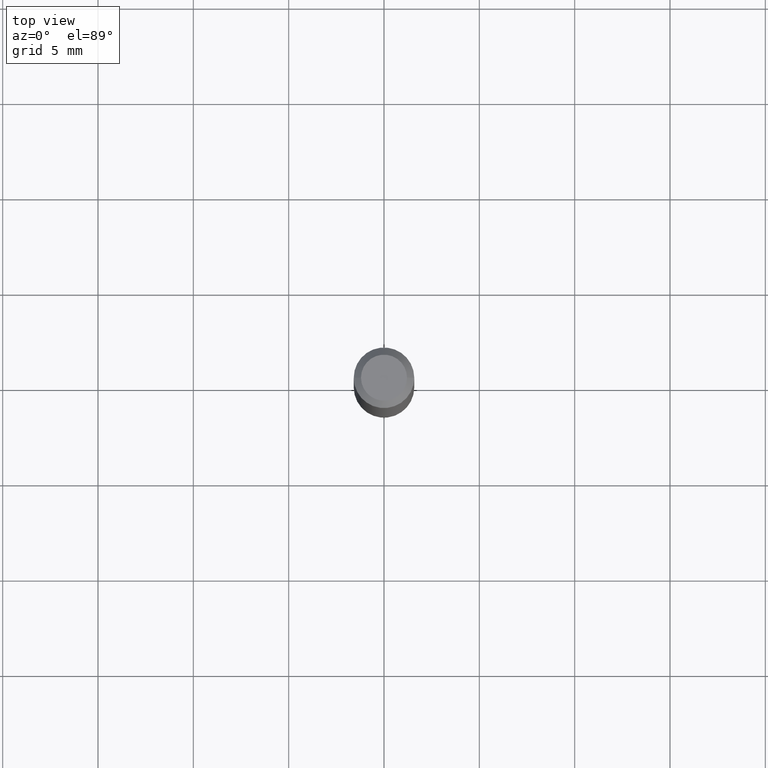
[diagram: clean part render]
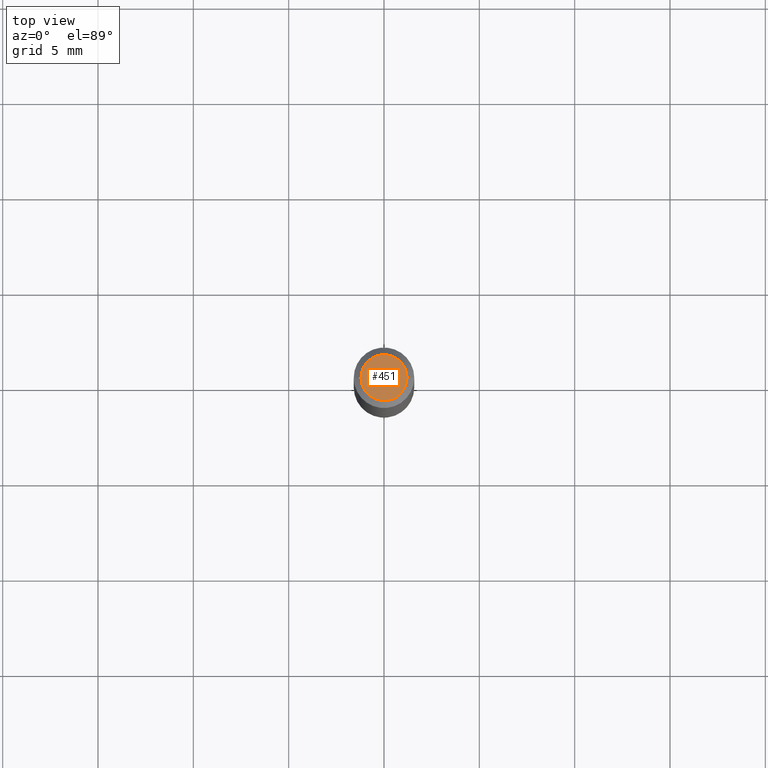
[diagram: same view with one face highlighted and labeled with its STEP entity id]
A machine part, top view. The second image highlights one B-rep face of the part: STEP entity #451.
In plain terms, the highlighted planar face has unit normal (0, -0, -1).
Its self-contained STEP definition (entity closure, byte-faithful):
#13 = DIRECTION ( 'NONE',  ( -1.000000000000000000, 6.982962677686265922E-15, -4.876176775795935793E-29 ) ) ;
#26 = AXIS2_PLACEMENT_3D ( 'NONE', #191, #291, #13 ) ;
#27 = VERTEX_POINT ( 'NONE', #295 ) ;
#48 = EDGE_CURVE ( 'NONE', #64, #27, #125, .T. ) ;
#56 = AXIS2_PLACEMENT_3D ( 'NONE', #254, #319, #465 ) ;
#64 = VERTEX_POINT ( 'NONE', #367 ) ;
#83 = FACE_OUTER_BOUND ( 'NONE', #358, .T. ) ;
#94 = AXIS2_PLACEMENT_3D ( 'NONE', #303, #107, #238 ) ;
#107 = DIRECTION ( 'NONE',  ( -2.445468806185136597E-29, 3.491481338843145583E-15, 1.000000000000000000 ) ) ;
#125 = CIRCLE ( 'NONE', #56, 0.04749999999999999362 ) ;
#173 = ORIENTED_EDGE ( 'NONE', *, *, #186, .T. ) ;
#186 = EDGE_CURVE ( 'NONE', #27, #64, #435, .T. ) ;
#191 = CARTESIAN_POINT ( 'NONE',  ( 3.316907271900976096E-16, 0.04749999999999999362, -1.224772766956247324E-16 ) ) ;
#238 = DIRECTION ( 'NONE',  ( 1.000000000000000000, -6.982962677686267499E-15, 4.884662768193073002E-29 ) ) ;
#254 = CARTESIAN_POINT ( 'NONE',  ( -2.121106073929386760E-45, 3.028377322213383622E-31, 8.673617379884936499E-17 ) ) ;
#291 = DIRECTION ( 'NONE',  ( 2.438088387897960049E-29, -3.491481338843145188E-15, -1.000000000000000000 ) ) ;
#295 = CARTESIAN_POINT ( 'NONE',  ( 0.04749999999999999362, -4.035134999187577144E-16, 8.673617379885194112E-17 ) ) ;
#303 = CARTESIAN_POINT ( 'NONE',  ( -2.121106073929386760E-45, 3.028377322213383622E-31, 8.673617379884936499E-17 ) ) ;
#319 = DIRECTION ( 'NONE',  ( -2.445468806185136597E-29, 3.491481338843145583E-15, 1.000000000000000000 ) ) ;
#358 = EDGE_LOOP ( 'NONE', ( #460, #173 ) ) ;
#367 = CARTESIAN_POINT ( 'NONE',  ( -0.04749999999999999362, 3.578768372314211985E-16, 8.673617379884694910E-17 ) ) ;
#435 = CIRCLE ( 'NONE', #94, 0.04749999999999999362 ) ;
#445 = PLANE ( 'NONE',  #26 ) ;
#451 = ADVANCED_FACE ( 'NONE', ( #83 ), #445, .F. ) ;
#460 = ORIENTED_EDGE ( 'NONE', *, *, #48, .T. ) ;
#465 = DIRECTION ( 'NONE',  ( 1.000000000000000000, -6.982962677686267499E-15, 4.884662768193073002E-29 ) ) ;